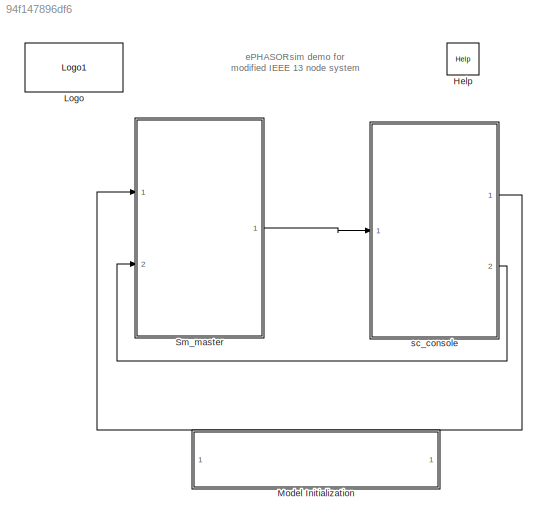
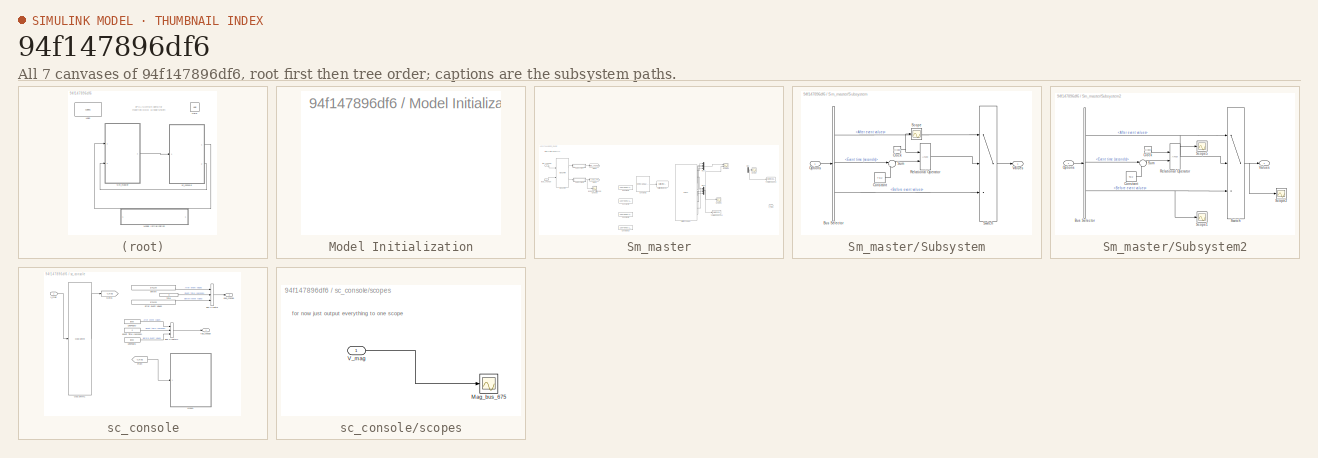
[diagram: thumbnail index - all 7 canvases of the model, root first then tree order]
MODEL slx_94f147896df6
KIND model
CONFIG AbsTol = auto
CONFIG FixedStep = Ts
CONFIG InitFcn = Ts=0.1;
CONFIG MaxStep = auto
CONFIG MinStep = auto
CONFIG PostLoadFcn = Ts=0.1;
CONFIG PreLoadFcn = Ts=0.1;
CONFIG RelTol = 1e-3
CONFIG SampleTimeConstraint = Unconstrained
CONFIG Solver = ode4
CONFIG SolverMode = Auto
CONFIG SolverName = ode4
CONFIG StartFcn = Ts=0.1;
CONFIG StartTime = 0.0
CONFIG StopTime = 40
BLOCK [Reference] Help  REF=opal_lib/Help
  Ports = []
  SourceBlock = opal_lib/Help
  SourceType = OpDoc
  docfile = ../help/ePH_IEEE13.html
BLOCK [Reference] Logo  REF=opal_lib/Logo1
  Ports = []
  SourceBlock = opal_lib/Logo1
  SourceType = Opal-RT logo
  vide = []
BLOCK [SubSystem] Model Initialization
  CopyFcn = set_param(gcb,'LinkStatus','none')
  Ports = []
  RequestExecContextInheritance = off
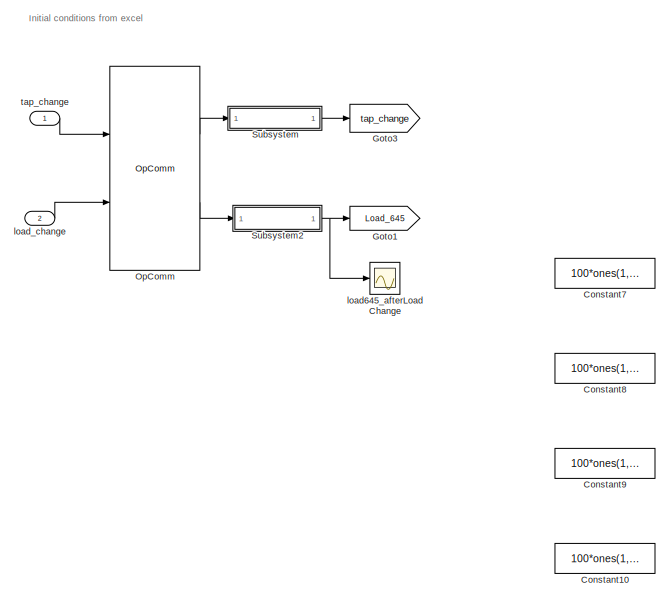
[diagram: Sm_master - part 1/2, left side, full height]
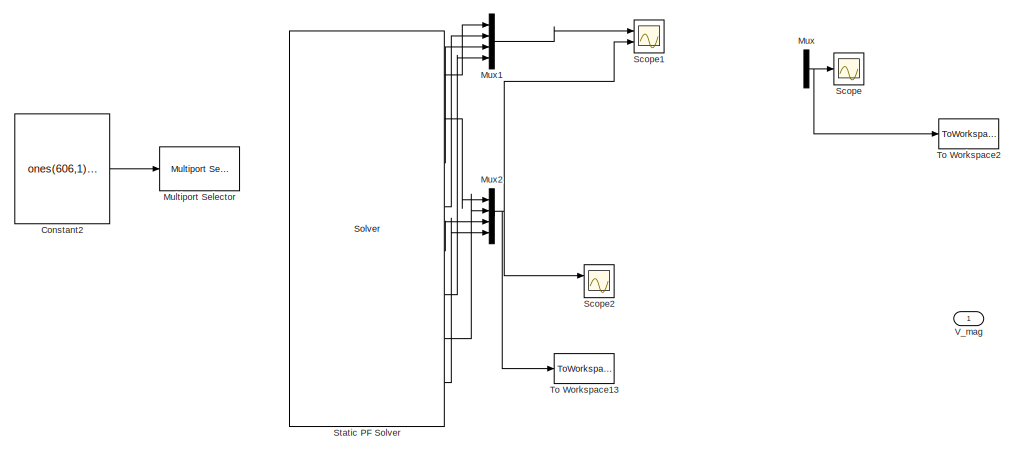
[diagram: Sm_master - part 2/2, middle right region]
BLOCK [SubSystem] Sm_master
  Ports = [2, 1]
  RequestExecContextInheritance = off
BLOCK [Constant] Sm_master/Constant10
  Value = 100*ones(1,6)
BLOCK [Constant] Sm_master/Constant2
  Value = ones(606,1)*100
BLOCK [Constant] Sm_master/Constant7
  Value = 100*ones(1,6)
BLOCK [Constant] Sm_master/Constant8
  Value = 100*ones(1,6)
BLOCK [Constant] Sm_master/Constant9
  Value = 100*ones(1,6)
BLOCK [Goto] Sm_master/Goto1
  GotoTag = Load_645
BLOCK [Goto] Sm_master/Goto3
  GotoTag = tap_change
BLOCK [Reference] Sm_master/Multiport Selector  REF=dspindex/Multiport
Selector
  Ports = [1, 3]
  SourceBlock = dspindex/Multiport\nSelector
  SourceType = Multiport Selector
  idxCellArray = { [1:254], [255:508], [509: 606]}
  idxErrMode = Generate Error
  rowsOrCols = Rows
BLOCK [Mux] Sm_master/Mux
  DisplayOption = bar
  Inputs = 3
  Ports = [3, 1]
BLOCK [Mux] Sm_master/Mux1
  DisplayOption = bar
  Ports = [4, 1]
BLOCK [Mux] Sm_master/Mux2
  DisplayOption = bar
  Ports = [4, 1]
BLOCK [Reference] Sm_master/OpComm  REF=rtlab/OpComm
  Interpolation = on
  Missed_Data = off
  Offset = off
  Ports = [2, 2]
  Samples = off
  Sim_Time = off
  SourceBlock = rtlab/OpComm
  SourceType = RT-LAB OpComm
  Synchronization = on
  Threshold = 1.0
  dynSigOut = off
  from_console = 1
  groupe_acq = 1
  nbport = 2
  st = 0
  subsys_rate = 0
  warning_done = off
  writeOpCommFile = off
BLOCK [Scope] Sm_master/Scope
  Floating = off
  NumInputPorts = 1
  Ports = [1]
  YMax = 2425
  YMin = 2225
BLOCK [Scope] Sm_master/Scope1
  DataFormat = StructureWithTime
  Floating = off
  LimitDataPoints = off
  NumInputPorts = 2
  Ports = [2]
  SaveName = ScopeData2
  YMax = 2.625~5
  YMin = -23.625~-5
BLOCK [Scope] Sm_master/Scope2
  DataFormat = StructureWithTime
  Floating = off
  LimitDataPoints = off
  NumInputPorts = 2
  Ports = [2]
  SaveName = ScopeData18
  YMax = 2.625~5
  YMin = -23.625~-5
BLOCK [Reference] Sm_master/Static PF Solver  REF=rtlab_phasor/Solver
  Ports = [2, 8]
  SourceBlock = rtlab_phasor/Solver
  builtin = on
  capidir = 'CAPI'
  capiprefix = capicomp_
  cyme = 'ieee13.sxst'
  cyme_pf = ''
  cyme_unbalanced = on
  dt = Ts
  dyr = '4992b.dyr'
  epname = System
  exporty = off
  extension = Excel
  fmudir = 'FMU'
  fmuprefix = fmucomp_
  lazy_netlist = on
  logging = off
  np = 1
  optim_threads = off
  perflog_on = off
  pf_export = on
  pf_flat_start = off
  pf_max_it = 100
  pf_smart_start = on
  pf_tol_v = 0.00000001
  powerfactory = 'network.dgs'
  raw = '4992b.raw'
  script_activate_postinit = off
  script_postinit_name = 'python_integration_13NFbal.py'
  sim_mode = Dynamic simulation only (without power-flow)
  xls = 'PL0001_OPAL_working.xls'
BLOCK [SubSystem] Sm_master/Subsystem
  Ports = [1, 1]
  RequestExecContextInheritance = off
BLOCK [BusSelector] Sm_master/Subsystem/Bus Selector
  OutputSignals = After event values,Event time (seconds),Before event values
  Ports = [1, 3]
BLOCK [Clock] Sm_master/Subsystem/Clock
  Decimation = 1
BLOCK [Constant] Sm_master/Subsystem/Constant
  Value = Ts/2
BLOCK [Inport] Sm_master/Subsystem/Options
  IconDisplay = Port number
BLOCK [RelationalOperator] Sm_master/Subsystem/Relational Operator
  InputSameDT = off
  OutDataTypeStr = boolean
  Ports = [2, 1]
BLOCK [Scope] Sm_master/Subsystem/Scope
  Floating = off
  NumInputPorts = 1
  Ports = [1]
  SaveName = ScopeData1
BLOCK [Sum] Sm_master/Subsystem/Sum
  IconShape = round
  InputSameDT = off
  Inputs = |+-
  OutDataTypeStr = Inherit: Inherit via internal rule
  Ports = [2, 1]
  SaturateOnIntegerOverflow = off
BLOCK [Switch] Sm_master/Subsystem/Switch
  InputSameDT = off
  SaturateOnIntegerOverflow = off
  Threshold = 0.5
BLOCK [Outport] Sm_master/Subsystem/Values
  IconDisplay = Port number
BLOCK [SubSystem] Sm_master/Subsystem2
  Ports = [1, 1]
  RequestExecContextInheritance = off
BLOCK [BusSelector] Sm_master/Subsystem2/Bus Selector
  OutputSignals = After event values,Event time (seconds),Before event values
  Ports = [1, 3]
BLOCK [Clock] Sm_master/Subsystem2/Clock
  Decimation = 1
BLOCK [Constant] Sm_master/Subsystem2/Constant
  Value = Ts/2
BLOCK [Inport] Sm_master/Subsystem2/Options
  IconDisplay = Port number
BLOCK [RelationalOperator] Sm_master/Subsystem2/Relational Operator
  InputSameDT = off
  OutDataTypeStr = boolean
  Ports = [2, 1]
BLOCK [Scope] Sm_master/Subsystem2/Scope1
  DataFormat = StructureWithTime
  Floating = off
  LimitDataPoints = off
  NumInputPorts = 1
  Ports = [1]
  SampleTime = 0
  SaveName = ScopeData14
  ZoomMode = yonly
BLOCK [Scope] Sm_master/Subsystem2/Scope2
  DataFormat = StructureWithTime
  Floating = off
  LimitDataPoints = off
  NumInputPorts = 1
  Ports = [1]
  SampleTime = 0
  SaveName = ScopeData15
  ZoomMode = yonly
BLOCK [Scope] Sm_master/Subsystem2/Scope5
  DataFormat = StructureWithTime
  Floating = off
  LimitDataPoints = off
  NumInputPorts = 1
  Ports = [1]
  SampleTime = 0
  SaveName = ScopeData13
  ZoomMode = yonly
BLOCK [Sum] Sm_master/Subsystem2/Sum
  IconShape = round
  InputSameDT = off
  Inputs = |+-
  OutDataTypeStr = Inherit: Inherit via internal rule
  Ports = [2, 1]
  SaturateOnIntegerOverflow = off
BLOCK [Switch] Sm_master/Subsystem2/Switch
  InputSameDT = off
  SaturateOnIntegerOverflow = off
  Threshold = 0.5
BLOCK [Outport] Sm_master/Subsystem2/Values
  IconDisplay = Port number
BLOCK [ToWorkspace] Sm_master/To Workspace13
  FixptAsFi = on
  MaxDataPoints = inf
  Ports = [1]
  SampleTime = -1
  Save2DSignal = 3-D array (concatenate along third dimension)
  VariableName = allDel
BLOCK [ToWorkspace] Sm_master/To Workspace2
  MaxDataPoints = inf
  Ports = [1]
  SampleTime = -1
  Save2DSignal = 2-D array (concatenate along first dimension)
  VariableName = allPQ
BLOCK [Outport] Sm_master/V_mag
  IconDisplay = Port number
BLOCK [Scope] Sm_master/load645_afterLoadChange
  Floating = off
  LegendLocations = 0.6649     0.75575     0.26032     0.11379
  NumInputPorts = 1
  Ports = [1]
  SaveName = ScopeData17
  ShowLegends = on
  YMax = 1.0518
  YMin = 0.94469
BLOCK [Inport] Sm_master/load_change
  IconDisplay = Port number
  Port = 2
BLOCK [Inport] Sm_master/tap_change
  IconDisplay = Port number
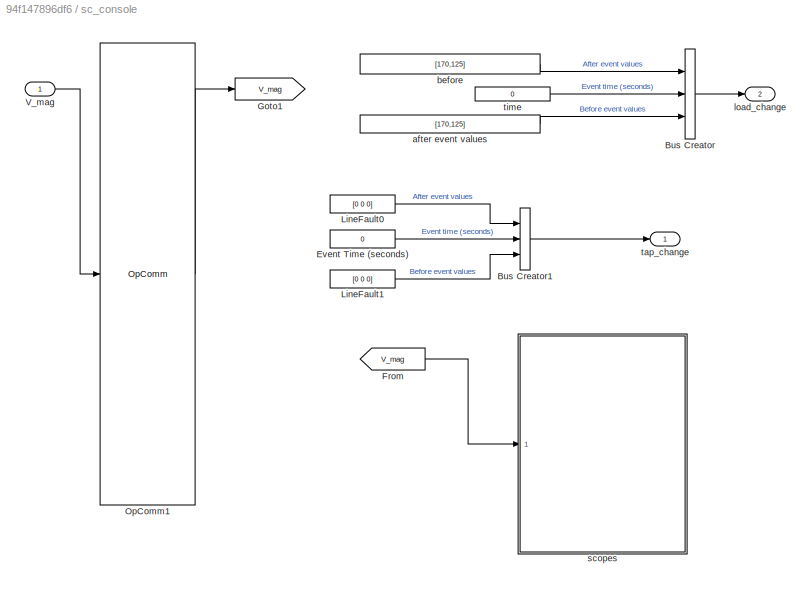
BLOCK [SubSystem] sc_console
  Ports = [1, 2]
  RequestExecContextInheritance = off
BLOCK [BusCreator] sc_console/Bus Creator
  DisplayOption = bar
  Inputs = 3
  Ports = [3, 1]
BLOCK [BusCreator] sc_console/Bus Creator1
  DisplayOption = bar
  Inputs = 3
  Ports = [3, 1]
BLOCK [Constant] sc_console/Event Time (seconds)
  Value = 0
BLOCK [From] sc_console/From
  GotoTag = V_mag
BLOCK [Goto] sc_console/Goto1
  GotoTag = V_mag
BLOCK [Constant] sc_console/LineFault0
  Value = [0 0 0]
BLOCK [Constant] sc_console/LineFault1
  Value = [0 0 0]
BLOCK [Reference] sc_console/OpComm1  REF=rtlab/OpComm
  Interpolation = on
  Missed_Data = off
  Offset = off
  Ports = [1, 1]
  Samples = off
  Sim_Time = off
  SourceBlock = rtlab/OpComm
  SourceType = RT-LAB OpComm
  Synchronization = on
  Threshold = 1.0
  dynSigOut = off
  from_console = 0
  groupe_acq = 1
  nbport = 1
  st = 0
  subsys_rate = 0
  warning_done = off
  writeOpCommFile = off
BLOCK [Inport] sc_console/V_mag
  IconDisplay = Port number
BLOCK [Constant] sc_console/after event values
  Value = [170,125]
BLOCK [Constant] sc_console/before
  Value = [170,125]
BLOCK [Outport] sc_console/load_change
  IconDisplay = Port number
  Port = 2
BLOCK [SubSystem] sc_console/scopes
  Ports = [1]
  RequestExecContextInheritance = off
BLOCK [Scope] sc_console/scopes/Mag_bus_675
  DataFormat = StructureWithTime
  Floating = off
  LimitDataPoints = off
  NumInputPorts = 1
  Ports = [1]
  SampleTime = 0
  SaveName = ScopeData6
  YMax = 1.07
  YMin = 0.92
  ZoomMode = yonly
BLOCK [Inport] sc_console/scopes/V_mag
  IconDisplay = Port number
BLOCK [Outport] sc_console/tap_change
  IconDisplay = Port number
BLOCK [Constant] sc_console/time
  Value = 0
ANNOTATION (root): ePHASORsim demo for modified IEEE 13 node system
ANNOTATION Sm_master: Initial conditions from excel
ANNOTATION sc_console/scopes: for now just output everything to one scope
LINE Sm_master/Constant2:1 -> Sm_master/Multiport Selector:1
LINE Sm_master/Mux1:1 -> Sm_master/Scope1:1
NET Sm_master/Mux2:1 -> Sm_master/Scope1:2, Sm_master/Scope2:1, Sm_master/To Workspace13:1
NET Sm_master/Mux:1 -> Sm_master/Scope:1, Sm_master/To Workspace2:1
LINE Sm_master/OpComm:1 -> Sm_master/Subsystem:1
LINE Sm_master/OpComm:2 -> Sm_master/Subsystem2:1
LINE Sm_master/Static PF Solver:1 -> Sm_master/Mux1:1
LINE Sm_master/Static PF Solver:2 -> Sm_master/Mux2:1
LINE Sm_master/Static PF Solver:3 -> Sm_master/Mux1:3
LINE Sm_master/Static PF Solver:4 -> Sm_master/Mux1:2
LINE Sm_master/Static PF Solver:5 -> Sm_master/Mux2:3
LINE Sm_master/Static PF Solver:6 -> Sm_master/Mux1:4
LINE Sm_master/Static PF Solver:7 -> Sm_master/Mux2:2
LINE Sm_master/Static PF Solver:8 -> Sm_master/Mux2:4
LINE Sm_master/Subsystem/Bus Selector:1 -> Sm_master/Subsystem/Switch:1
LINE Sm_master/Subsystem/Bus Selector:2 -> Sm_master/Subsystem/Sum:1
LINE Sm_master/Subsystem/Bus Selector:3 -> Sm_master/Subsystem/Switch:3
NET Sm_master/Subsystem/Clock:1 -> Sm_master/Subsystem/Relational Operator:1, Sm_master/Subsystem/Scope:1
LINE Sm_master/Subsystem/Constant:1 -> Sm_master/Subsystem/Sum:2
LINE Sm_master/Subsystem/Options:1 -> Sm_master/Subsystem/Bus Selector:1
LINE Sm_master/Subsystem/Relational Operator:1 -> Sm_master/Subsystem/Switch:2
LINE Sm_master/Subsystem/Sum:1 -> Sm_master/Subsystem/Relational Operator:2
LINE Sm_master/Subsystem/Switch:1 -> Sm_master/Subsystem/Values:1
NET Sm_master/Subsystem2/Bus Selector:1 -> Sm_master/Subsystem2/Scope5:1, Sm_master/Subsystem2/Switch:1
LINE Sm_master/Subsystem2/Bus Selector:2 -> Sm_master/Subsystem2/Sum:1
NET Sm_master/Subsystem2/Bus Selector:3 -> Sm_master/Subsystem2/Scope1:1, Sm_master/Subsystem2/Switch:3
LINE Sm_master/Subsystem2/Clock:1 -> Sm_master/Subsystem2/Relational Operator:1
LINE Sm_master/Subsystem2/Constant:1 -> Sm_master/Subsystem2/Sum:2
LINE Sm_master/Subsystem2/Options:1 -> Sm_master/Subsystem2/Bus Selector:1
LINE Sm_master/Subsystem2/Relational Operator:1 -> Sm_master/Subsystem2/Switch:2
LINE Sm_master/Subsystem2/Sum:1 -> Sm_master/Subsystem2/Relational Operator:2
NET Sm_master/Subsystem2/Switch:1 -> Sm_master/Subsystem2/Scope2:1, Sm_master/Subsystem2/Values:1
NET Sm_master/Subsystem2:1 -> Sm_master/Goto1:1, Sm_master/load645_afterLoadChange:1
LINE Sm_master/Subsystem:1 -> Sm_master/Goto3:1
LINE Sm_master/load_change:1 -> Sm_master/OpComm:2
LINE Sm_master/tap_change:1 -> Sm_master/OpComm:1
LINE Sm_master:1 -> sc_console:1
LINE sc_console/Bus Creator1:1 -> sc_console/tap_change:1
LINE sc_console/Bus Creator:1 -> sc_console/load_change:1
LINE sc_console/Event Time (seconds):1 -> sc_console/Bus Creator1:2
LINE sc_console/From:1 -> sc_console/scopes:1
LINE sc_console/LineFault0:1 -> sc_console/Bus Creator1:1
LINE sc_console/LineFault1:1 -> sc_console/Bus Creator1:3
LINE sc_console/OpComm1:1 -> sc_console/Goto1:1
LINE sc_console/V_mag:1 -> sc_console/OpComm1:1
LINE sc_console/after event values:1 -> sc_console/Bus Creator:3
LINE sc_console/before:1 -> sc_console/Bus Creator:1
LINE sc_console/scopes/V_mag:1 -> sc_console/scopes/Mag_bus_675:1
LINE sc_console/time:1 -> sc_console/Bus Creator:2
LINE sc_console:1 -> Sm_master:1
LINE sc_console:2 -> Sm_master:2
note: NET lines group one-source signal fan-out (src -> all destinations, sorted); 1:1 wires keep LINE
